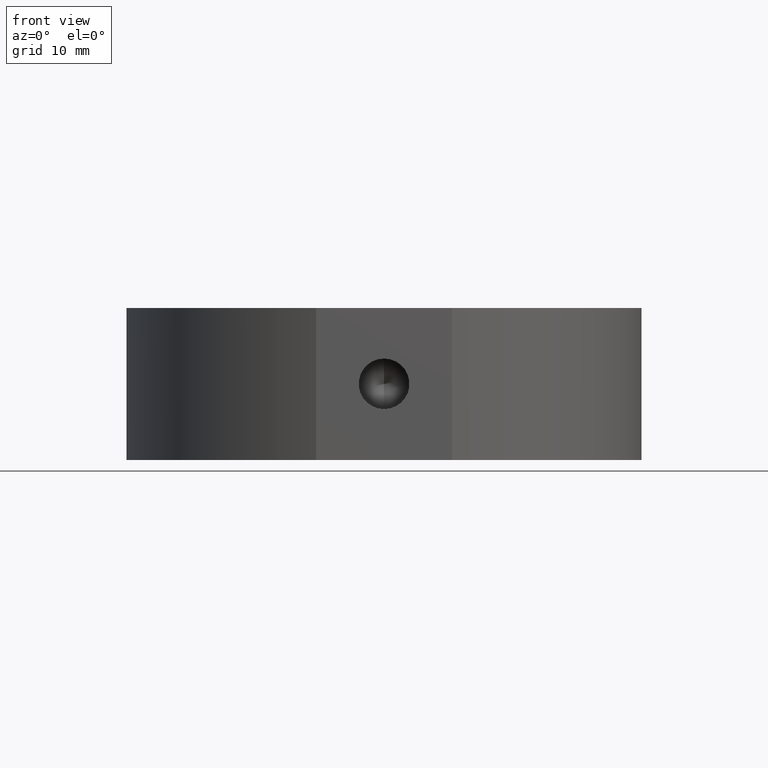
[diagram: clean part render]
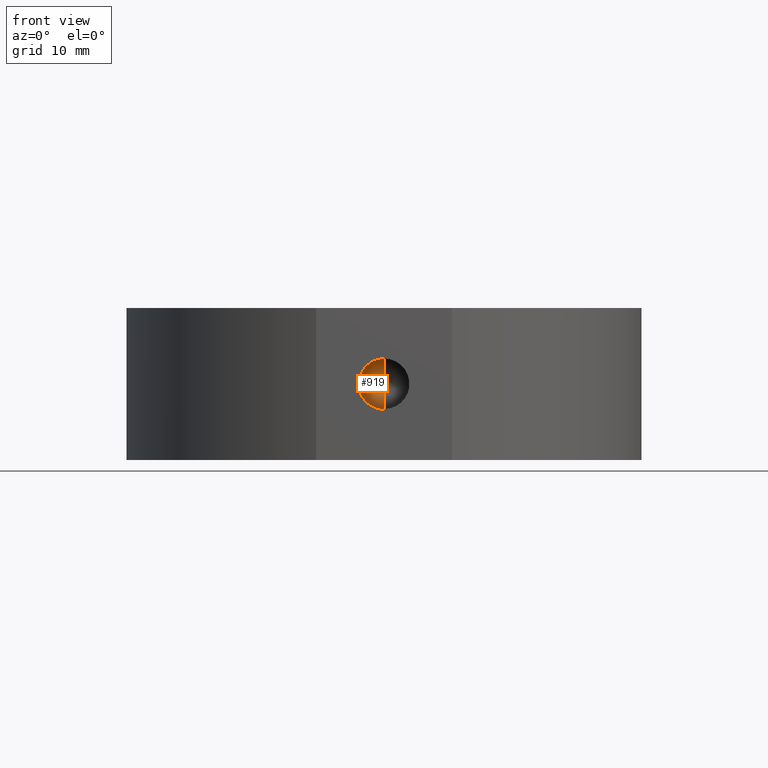
[diagram: same view with one face highlighted and labeled with its STEP entity id]
A machine part, front view. The second image highlights one B-rep face of the part: STEP entity #919.
In plain terms, the highlighted conical surface has half-angle 59 deg.
Its self-contained STEP definition (entity closure, byte-faithful):
#37 = DIRECTION ( 'NONE',  ( 0.0000000000000000000, -0.5150380749100554900, -0.8571673007021115600 ) ) ;
#65 = LINE ( 'NONE', #779, #533 ) ;
#137 = VERTEX_POINT ( 'NONE', #820 ) ;
#209 = VERTEX_POINT ( 'NONE', #703 ) ;
#288 = CIRCLE ( 'NONE', #818, 2.499999999999997800 ) ;
#332 = DIRECTION ( 'NONE',  ( -0.0000000000000000000, -1.000000000000000000, -0.0000000000000000000 ) ) ;
#343 = CARTESIAN_POINT ( 'NONE',  ( 5.510332127717259900E-015, -19.00000000000000400, 2.499999999999997800 ) ) ;
#418 = ORIENTED_EDGE ( 'NONE', *, *, #889, .F. ) ;
#486 = DIRECTION ( 'NONE',  ( 0.0000000000000000000, 0.0000000000000000000, -1.000000000000000000 ) ) ;
#494 = EDGE_LOOP ( 'NONE', ( #418, #538, #728 ) ) ;
#498 = DIRECTION ( 'NONE',  ( 1.049727191138617700E-016, -0.5150380749100554900, 0.8571673007021115600 ) ) ;
#504 = AXIS2_PLACEMENT_3D ( 'NONE', #702, #704, #486 ) ;
#533 = VECTOR ( 'NONE', #37, 1000.000000000000000 ) ;
#538 = ORIENTED_EDGE ( 'NONE', *, *, #886, .T. ) ;
#564 = CARTESIAN_POINT ( 'NONE',  ( 5.204170427930421300E-015, -19.00000000000000400, 0.0000000000000000000 ) ) ;
#615 = LINE ( 'NONE', #343, #778 ) ;
#701 = VERTEX_POINT ( 'NONE', #842 ) ;
#702 = CARTESIAN_POINT ( 'NONE',  ( 5.204170427930421300E-015, -19.00000000000000400, 0.0000000000000000000 ) ) ;
#703 = CARTESIAN_POINT ( 'NONE',  ( 3.489137931955432100E-015, -17.49784845243110000, 0.0000000000000000000 ) ) ;
#704 = DIRECTION ( 'NONE',  ( -0.0000000000000000000, -1.000000000000000000, -0.0000000000000000000 ) ) ;
#728 = ORIENTED_EDGE ( 'NONE', *, *, #804, .T. ) ;
#778 = VECTOR ( 'NONE', #498, 1000.000000000000000 ) ;
#779 = CARTESIAN_POINT ( 'NONE',  ( 5.204170427930421300E-015, -19.00000000000000400, -2.499999999999997800 ) ) ;
#783 = DIRECTION ( 'NONE',  ( 0.0000000000000000000, 0.0000000000000000000, -1.000000000000000000 ) ) ;
#800 = CONICAL_SURFACE ( 'NONE', #504, 2.499999999999997800, 1.029744258676653000 ) ;
#804 = EDGE_CURVE ( 'NONE', #701, #137, #288, .T. ) ;
#818 = AXIS2_PLACEMENT_3D ( 'NONE', #564, #332, #783 ) ;
#820 = CARTESIAN_POINT ( 'NONE',  ( 5.204170427930421300E-015, -19.00000000000000400, -2.499999999999997800 ) ) ;
#842 = CARTESIAN_POINT ( 'NONE',  ( 5.510332127717259900E-015, -19.00000000000000400, 2.499999999999997800 ) ) ;
#886 = EDGE_CURVE ( 'NONE', #209, #701, #615, .T. ) ;
#889 = EDGE_CURVE ( 'NONE', #209, #137, #65, .T. ) ;
#919 = ADVANCED_FACE ( 'NONE', ( #947 ), #800, .F. ) ;
#947 = FACE_OUTER_BOUND ( 'NONE', #494, .T. ) ;